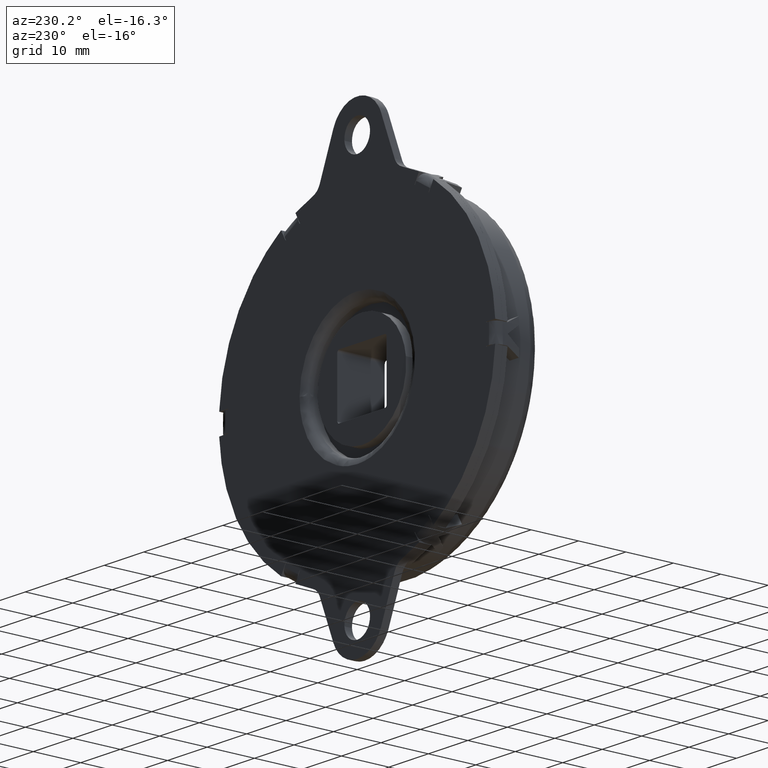
[diagram: clean part render]
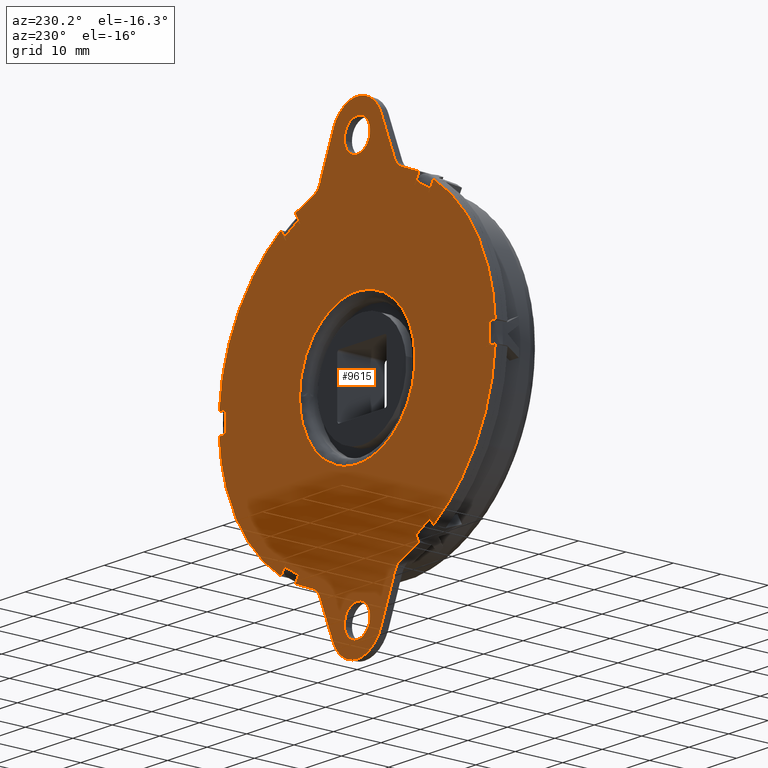
[diagram: same view with one face highlighted and labeled with its STEP entity id]
A machine part, auxiliary view. The second image highlights one B-rep face of the part: STEP entity #9615.
In plain terms, the highlighted face is a freeform B-spline surface patch.
Its self-contained STEP definition (entity closure, byte-faithful):
#2194=CARTESIAN_POINT('',(-3.239981334623022,-3.469447E-018,41.254992061238028));
#2195=VERTEX_POINT('',#2194);
#2201=CARTESIAN_POINT('',(0.0,0.0,44.250000000000007));
#2202=VERTEX_POINT('',#2201);
#2203=CARTESIAN_POINT('',(0.0,0.0,44.250000000000007));
#2204=CARTESIAN_POINT('',(-3.004269097661231,0.0,44.250000000000000));
#2205=CARTESIAN_POINT('',(-3.239981334623022,-3.469447E-018,41.254992061238028));
#2213=(BOUNDED_CURVE()B_SPLINE_CURVE(2,(#2203,#2204,#2205),.UNSPECIFIED.,.F.,.U.)B_SPLINE_CURVE_WITH_KNOTS((3,3),(0.0,0.236331300619801),.UNSPECIFIED.)CURVE()GEOMETRIC_REPRESENTATION_ITEM()RATIONAL_B_SPLINE_CURVE((1.0,0.723120658620388,0.969723356144756))REPRESENTATION_ITEM(''));
#2214=EDGE_CURVE('',#2202,#2195,#2213,.T.);
#2216=CARTESIAN_POINT('',(3.239981334623022,-3.469447E-018,40.745007938761972));
#2217=VERTEX_POINT('',#2216);
#2218=CARTESIAN_POINT('',(3.239981334623022,-3.469447E-018,40.745007938761972));
#2219=CARTESIAN_POINT('',(3.250000000000000,0.0,40.872307152101968));
#2220=CARTESIAN_POINT('',(3.250000000000000,0.0,41.0));
#2221=CARTESIAN_POINT('',(3.250000000000000,0.0,44.250000000000007));
#2222=CARTESIAN_POINT('',(0.0,0.0,44.250000000000007));
#2230=(BOUNDED_CURVE()B_SPLINE_CURVE(2,(#2218,#2219,#2220,#2221,#2222),.UNSPECIFIED.,.F.,.U.)B_SPLINE_CURVE_WITH_KNOTS((3,2,3),(0.736331300619801,0.750000000000000,1.0),.UNSPECIFIED.)CURVE()GEOMETRIC_REPRESENTATION_ITEM()RATIONAL_B_SPLINE_CURVE((0.969723356144756,0.983986122566160,1.0,0.707106781186547,1.0))REPRESENTATION_ITEM(''));
#2231=EDGE_CURVE('',#2217,#2202,#2230,.T.);
#2307=CARTESIAN_POINT('',(0.0,0.0,37.750000000000000));
#2308=VERTEX_POINT('',#2307);
#2309=CARTESIAN_POINT('',(0.0,0.0,37.750000000000000));
#2310=CARTESIAN_POINT('',(3.004269097661238,0.0,37.750000000000000));
#2311=CARTESIAN_POINT('',(3.239981334623022,-3.469447E-018,40.745007938761972));
#2319=(BOUNDED_CURVE()B_SPLINE_CURVE(2,(#2309,#2310,#2311),.UNSPECIFIED.,.F.,.U.)B_SPLINE_CURVE_WITH_KNOTS((3,3),(0.500000000000000,0.736331300619801),.UNSPECIFIED.)CURVE()GEOMETRIC_REPRESENTATION_ITEM()RATIONAL_B_SPLINE_CURVE((1.0,0.723120658620387,0.969723356144756))REPRESENTATION_ITEM(''));
#2320=EDGE_CURVE('',#2308,#2217,#2319,.T.);
#2322=CARTESIAN_POINT('',(-3.239981334623022,-3.469447E-018,41.254992061238028));
#2323=CARTESIAN_POINT('',(-3.250000000000000,0.0,41.127692847898025));
#2324=CARTESIAN_POINT('',(-3.250000000000000,0.0,41.0));
#2325=CARTESIAN_POINT('',(-3.250000000000000,0.0,37.750000000000007));
#2326=CARTESIAN_POINT('',(0.0,0.0,37.750000000000000));
#2334=(BOUNDED_CURVE()B_SPLINE_CURVE(2,(#2322,#2323,#2324,#2325,#2326),.UNSPECIFIED.,.F.,.U.)B_SPLINE_CURVE_WITH_KNOTS((3,2,3),(0.236331300619801,0.250000000000000,0.500000000000000),.UNSPECIFIED.)CURVE()GEOMETRIC_REPRESENTATION_ITEM()RATIONAL_B_SPLINE_CURVE((0.969723356144756,0.983986122566160,1.0,0.707106781186547,1.0))REPRESENTATION_ITEM(''));
#2335=EDGE_CURVE('',#2195,#2308,#2334,.T.);
#2376=CARTESIAN_POINT('',(-3.239981334623022,-3.469447E-018,-40.745007938761972));
#2377=VERTEX_POINT('',#2376);
#2383=CARTESIAN_POINT('',(0.0,0.0,-37.750000000000000));
#2384=VERTEX_POINT('',#2383);
#2385=CARTESIAN_POINT('',(0.0,0.0,-37.750000000000000));
#2386=CARTESIAN_POINT('',(-3.004269097661227,0.0,-37.750000000000007));
#2387=CARTESIAN_POINT('',(-3.239981334623022,-3.469447E-018,-40.745007938761972));
#2395=(BOUNDED_CURVE()B_SPLINE_CURVE(2,(#2385,#2386,#2387),.UNSPECIFIED.,.F.,.U.)B_SPLINE_CURVE_WITH_KNOTS((3,3),(0.0,0.236331300619800),.UNSPECIFIED.)CURVE()GEOMETRIC_REPRESENTATION_ITEM()RATIONAL_B_SPLINE_CURVE((1.0,0.723120658620388,0.969723356144755))REPRESENTATION_ITEM(''));
#2396=EDGE_CURVE('',#2384,#2377,#2395,.T.);
#2398=CARTESIAN_POINT('',(3.239981334623022,-3.469447E-018,-41.254992061238028));
#2399=VERTEX_POINT('',#2398);
#2400=CARTESIAN_POINT('',(3.239981334623022,-3.469447E-018,-41.254992061238035));
#2401=CARTESIAN_POINT('',(3.250000000000000,0.0,-41.127692847898032));
#2402=CARTESIAN_POINT('',(3.250000000000000,0.0,-41.0));
#2403=CARTESIAN_POINT('',(3.250000000000000,0.0,-37.750000000000007));
#2404=CARTESIAN_POINT('',(0.0,0.0,-37.750000000000000));
#2412=(BOUNDED_CURVE()B_SPLINE_CURVE(2,(#2400,#2401,#2402,#2403,#2404),.UNSPECIFIED.,.F.,.U.)B_SPLINE_CURVE_WITH_KNOTS((3,2,3),(0.736331300619801,0.750000000000000,1.0),.UNSPECIFIED.)CURVE()GEOMETRIC_REPRESENTATION_ITEM()RATIONAL_B_SPLINE_CURVE((0.969723356144756,0.983986122566160,1.0,0.707106781186547,1.0))REPRESENTATION_ITEM(''));
#2413=EDGE_CURVE('',#2399,#2384,#2412,.T.);
#2489=CARTESIAN_POINT('',(0.0,0.0,-44.250000000000007));
#2490=VERTEX_POINT('',#2489);
#2491=CARTESIAN_POINT('',(0.0,0.0,-44.250000000000007));
#2492=CARTESIAN_POINT('',(3.004269097661238,0.0,-44.250000000000000));
#2493=CARTESIAN_POINT('',(3.239981334623022,-3.469447E-018,-41.254992061238035));
#2501=(BOUNDED_CURVE()B_SPLINE_CURVE(2,(#2491,#2492,#2493),.UNSPECIFIED.,.F.,.U.)B_SPLINE_CURVE_WITH_KNOTS((3,3),(0.500000000000000,0.736331300619801),.UNSPECIFIED.)CURVE()GEOMETRIC_REPRESENTATION_ITEM()RATIONAL_B_SPLINE_CURVE((1.0,0.723120658620387,0.969723356144756))REPRESENTATION_ITEM(''));
#2502=EDGE_CURVE('',#2490,#2399,#2501,.T.);
#2504=CARTESIAN_POINT('',(-3.239981334623022,-3.469447E-018,-40.745007938761965));
#2505=CARTESIAN_POINT('',(-3.250000000000000,0.0,-40.872307152101975));
#2506=CARTESIAN_POINT('',(-3.250000000000000,0.0,-41.0));
#2507=CARTESIAN_POINT('',(-3.250000000000000,0.0,-44.250000000000007));
#2508=CARTESIAN_POINT('',(0.0,0.0,-44.250000000000007));
#2516=(BOUNDED_CURVE()B_SPLINE_CURVE(2,(#2504,#2505,#2506,#2507,#2508),.UNSPECIFIED.,.F.,.U.)B_SPLINE_CURVE_WITH_KNOTS((3,2,3),(0.236331300619800,0.250000000000000,0.500000000000000),.UNSPECIFIED.)CURVE()GEOMETRIC_REPRESENTATION_ITEM()RATIONAL_B_SPLINE_CURVE((0.969723356144755,0.983986122566159,1.0,0.707106781186547,1.0))REPRESENTATION_ITEM(''));
#2517=EDGE_CURVE('',#2377,#2490,#2516,.T.);
#2626=CARTESIAN_POINT('',(-14.497596722151600,0.0,29.310574110410400));
#2627=VERTEX_POINT('',#2626);
#2633=CARTESIAN_POINT('',(-14.587340000607860,0.0,29.266014028334400));
#2634=VERTEX_POINT('',#2633);
#2635=CARTESIAN_POINT('',(-14.497596722151609,0.0,29.310574110410389));
#2636=CARTESIAN_POINT('',(-14.542502495903378,0.0,29.288362815745987));
#2637=CARTESIAN_POINT('',(-14.587340000607870,0.0,29.266014028334411));
#2645=(BOUNDED_CURVE()B_SPLINE_CURVE(2,(#2635,#2636,#2637),.UNSPECIFIED.,.F.,.U.)CURVE()GEOMETRIC_REPRESENTATION_ITEM()QUASI_UNIFORM_CURVE()RATIONAL_B_SPLINE_CURVE((1.0,0.999998826386876,1.0))REPRESENTATION_ITEM(''));
#2646=EDGE_CURVE('',#2627,#2634,#2645,.T.);
#2790=CARTESIAN_POINT('',(-18.051441615745450,0.0,27.266014028334499));
#2791=VERTEX_POINT('',#2790);
#2797=CARTESIAN_POINT('',(-18.134903418046100,0.0,27.210574110410501));
#2798=VERTEX_POINT('',#2797);
#2799=CARTESIAN_POINT('',(-18.051441615745460,0.0,27.266014028334499));
#2800=CARTESIAN_POINT('',(-18.093214985740161,0.0,27.238358003923729));
#2801=CARTESIAN_POINT('',(-18.134903418046079,0.0,27.210574110410491));
#2809=(BOUNDED_CURVE()B_SPLINE_CURVE(2,(#2799,#2800,#2801),.UNSPECIFIED.,.F.,.U.)CURVE()GEOMETRIC_REPRESENTATION_ITEM()QUASI_UNIFORM_CURVE()RATIONAL_B_SPLINE_CURVE((1.0,0.999998826386876,1.0))REPRESENTATION_ITEM(''));
#2810=EDGE_CURVE('',#2791,#2798,#2809,.T.);
#2834=CARTESIAN_POINT('',(-32.632500140197699,0.0,2.099999999999910));
#2835=VERTEX_POINT('',#2834);
#2841=CARTESIAN_POINT('',(-32.638781616353299,0.0,1.999999999999905));
#2842=VERTEX_POINT('',#2841);
#2843=CARTESIAN_POINT('',(-32.632500140197678,0.0,2.099999999999905));
#2844=CARTESIAN_POINT('',(-32.635717481643226,0.0,2.050004811822229));
#2845=CARTESIAN_POINT('',(-32.638781616353292,0.0,1.999999999999899));
#2853=(BOUNDED_CURVE()B_SPLINE_CURVE(2,(#2843,#2844,#2845),.UNSPECIFIED.,.F.,.U.)CURVE()GEOMETRIC_REPRESENTATION_ITEM()QUASI_UNIFORM_CURVE()RATIONAL_B_SPLINE_CURVE((1.0,0.999998826386876,1.0))REPRESENTATION_ITEM(''));
#2854=EDGE_CURVE('',#2835,#2842,#2853,.T.);
#2998=CARTESIAN_POINT('',(-32.638781616353299,0.0,-1.999999999999885));
#2999=VERTEX_POINT('',#2998);
#3005=CARTESIAN_POINT('',(-32.632500140197699,0.0,-2.099999999999885));
#3006=VERTEX_POINT('',#3005);
#3007=CARTESIAN_POINT('',(-32.638781616353292,0.0,-1.999999999999894));
#3008=CARTESIAN_POINT('',(-32.635717481643226,0.0,-2.050004811822230));
#3009=CARTESIAN_POINT('',(-32.632500140197678,0.0,-2.099999999999901));
#3017=(BOUNDED_CURVE()B_SPLINE_CURVE(2,(#3007,#3008,#3009),.UNSPECIFIED.,.F.,.U.)CURVE()GEOMETRIC_REPRESENTATION_ITEM()QUASI_UNIFORM_CURVE()RATIONAL_B_SPLINE_CURVE((1.0,0.999998826386876,1.0))REPRESENTATION_ITEM(''));
#3018=EDGE_CURVE('',#2999,#3006,#3017,.T.);
#3287=CARTESIAN_POINT('',(-18.134903418046100,0.0,-27.210574110410501));
#3288=VERTEX_POINT('',#3287);
#3294=CARTESIAN_POINT('',(-18.051441615745450,0.0,-27.266014028334549));
#3295=VERTEX_POINT('',#3294);
#3296=CARTESIAN_POINT('',(-18.134903418046090,0.0,-27.210574110410491));
#3297=CARTESIAN_POINT('',(-18.093214985740364,0.0,-27.238358003923590));
#3298=CARTESIAN_POINT('',(-18.051441615745428,0.0,-27.266014028334521));
#3306=(BOUNDED_CURVE()B_SPLINE_CURVE(2,(#3296,#3297,#3298),.UNSPECIFIED.,.F.,.U.)CURVE()GEOMETRIC_REPRESENTATION_ITEM()QUASI_UNIFORM_CURVE()RATIONAL_B_SPLINE_CURVE((1.0,0.999998826386876,1.0))REPRESENTATION_ITEM(''));
#3307=EDGE_CURVE('',#3288,#3295,#3306,.T.);
#3451=CARTESIAN_POINT('',(-14.587340000607860,0.0,-29.266014028334400));
#3452=VERTEX_POINT('',#3451);
#3458=CARTESIAN_POINT('',(-14.497596722151600,0.0,-29.310574110410400));
#3459=VERTEX_POINT('',#3458);
#3460=CARTESIAN_POINT('',(-14.587340000607870,0.0,-29.266014028334411));
#3461=CARTESIAN_POINT('',(-14.542502495903136,0.0,-29.288362815746105));
#3462=CARTESIAN_POINT('',(-14.497596722151600,0.0,-29.310574110410400));
#3470=(BOUNDED_CURVE()B_SPLINE_CURVE(2,(#3460,#3461,#3462),.UNSPECIFIED.,.F.,.U.)CURVE()GEOMETRIC_REPRESENTATION_ITEM()QUASI_UNIFORM_CURVE()RATIONAL_B_SPLINE_CURVE((1.0,0.999998826386876,1.0))REPRESENTATION_ITEM(''));
#3471=EDGE_CURVE('',#3452,#3459,#3470,.T.);
#3495=CARTESIAN_POINT('',(14.497596722151600,0.0,-29.310574110410400));
#3496=VERTEX_POINT('',#3495);
#3502=CARTESIAN_POINT('',(14.587340000607860,0.0,-29.266014028334450));
#3503=VERTEX_POINT('',#3502);
#3504=CARTESIAN_POINT('',(14.497596722151590,0.0,-29.310574110410400));
#3505=CARTESIAN_POINT('',(14.542502495903577,0.0,-29.288362815745884));
#3506=CARTESIAN_POINT('',(14.587340000607840,0.0,-29.266014028334428));
#3514=(BOUNDED_CURVE()B_SPLINE_CURVE(2,(#3504,#3505,#3506),.UNSPECIFIED.,.F.,.U.)CURVE()GEOMETRIC_REPRESENTATION_ITEM()QUASI_UNIFORM_CURVE()RATIONAL_B_SPLINE_CURVE((1.0,0.999998826386876,1.0))REPRESENTATION_ITEM(''));
#3515=EDGE_CURVE('',#3496,#3503,#3514,.T.);
#3659=CARTESIAN_POINT('',(18.051441615745450,0.0,-27.266014028334549));
#3660=VERTEX_POINT('',#3659);
#3666=CARTESIAN_POINT('',(18.134903418046051,0.0,-27.210574110410501));
#3667=VERTEX_POINT('',#3666);
#3668=CARTESIAN_POINT('',(18.051441615745421,0.0,-27.266014028334531));
#3669=CARTESIAN_POINT('',(18.093214985739287,0.0,-27.238358003924304));
#3670=CARTESIAN_POINT('',(18.134903418046040,0.0,-27.210574110410509));
#3678=(BOUNDED_CURVE()B_SPLINE_CURVE(2,(#3668,#3669,#3670),.UNSPECIFIED.,.F.,.U.)CURVE()GEOMETRIC_REPRESENTATION_ITEM()QUASI_UNIFORM_CURVE()RATIONAL_B_SPLINE_CURVE((1.0,0.999998826386876,1.0))REPRESENTATION_ITEM(''));
#3679=EDGE_CURVE('',#3660,#3667,#3678,.T.);
#3703=CARTESIAN_POINT('',(32.632500140197699,0.0,-2.099999999999910));
#3704=VERTEX_POINT('',#3703);
#3710=CARTESIAN_POINT('',(32.638781616353299,0.0,-1.999999999999905));
#3711=VERTEX_POINT('',#3710);
#3712=CARTESIAN_POINT('',(32.632500140197678,0.0,-2.099999999999909));
#3713=CARTESIAN_POINT('',(32.635717481643226,0.0,-2.050004811822254));
#3714=CARTESIAN_POINT('',(32.638781616353292,0.0,-1.999999999999902));
#3722=(BOUNDED_CURVE()B_SPLINE_CURVE(2,(#3712,#3713,#3714),.UNSPECIFIED.,.F.,.U.)CURVE()GEOMETRIC_REPRESENTATION_ITEM()QUASI_UNIFORM_CURVE()RATIONAL_B_SPLINE_CURVE((1.0,0.999998826386876,1.0))REPRESENTATION_ITEM(''));
#3723=EDGE_CURVE('',#3704,#3711,#3722,.T.);
#3867=CARTESIAN_POINT('',(32.638781616353299,0.0,1.999999999999885));
#3868=VERTEX_POINT('',#3867);
#3874=CARTESIAN_POINT('',(32.632500140197699,0.0,2.099999999999885));
#3875=VERTEX_POINT('',#3874);
#3876=CARTESIAN_POINT('',(32.638781616353292,0.0,1.999999999999890));
#3877=CARTESIAN_POINT('',(32.635717481643276,0.0,2.050004811821609));
#3878=CARTESIAN_POINT('',(32.632500140197692,0.0,2.099999999999868));
#3886=(BOUNDED_CURVE()B_SPLINE_CURVE(2,(#3876,#3877,#3878),.UNSPECIFIED.,.F.,.U.)CURVE()GEOMETRIC_REPRESENTATION_ITEM()QUASI_UNIFORM_CURVE()RATIONAL_B_SPLINE_CURVE((1.0,0.999998826386876,1.0))REPRESENTATION_ITEM(''));
#3887=EDGE_CURVE('',#3868,#3875,#3886,.T.);
#3911=CARTESIAN_POINT('',(18.134903418046051,0.0,27.210574110410501));
#3912=VERTEX_POINT('',#3911);
#3918=CARTESIAN_POINT('',(18.051441615745400,0.0,27.266014028334549));
#3919=VERTEX_POINT('',#3918);
#3920=CARTESIAN_POINT('',(18.134903418046068,0.0,27.210574110410501));
#3921=CARTESIAN_POINT('',(18.093214985740044,0.0,27.238358003923800));
#3922=CARTESIAN_POINT('',(18.051441615745400,0.0,27.266014028334549));
#3930=(BOUNDED_CURVE()B_SPLINE_CURVE(2,(#3920,#3921,#3922),.UNSPECIFIED.,.F.,.U.)CURVE()GEOMETRIC_REPRESENTATION_ITEM()QUASI_UNIFORM_CURVE()RATIONAL_B_SPLINE_CURVE((1.0,0.999998826386876,1.0))REPRESENTATION_ITEM(''));
#3931=EDGE_CURVE('',#3912,#3919,#3930,.T.);
#4075=CARTESIAN_POINT('',(14.587340000607840,0.0,29.266014028334450));
#4076=VERTEX_POINT('',#4075);
#4082=CARTESIAN_POINT('',(14.497596722151600,0.0,29.310574110410400));
#4083=VERTEX_POINT('',#4082);
#4084=CARTESIAN_POINT('',(14.587340000607851,0.0,29.266014028334421));
#4085=CARTESIAN_POINT('',(14.542502495902706,0.0,29.288362815746318));
#4086=CARTESIAN_POINT('',(14.497596722151620,0.0,29.310574110410389));
#4094=(BOUNDED_CURVE()B_SPLINE_CURVE(2,(#4084,#4085,#4086),.UNSPECIFIED.,.F.,.U.)CURVE()GEOMETRIC_REPRESENTATION_ITEM()QUASI_UNIFORM_CURVE()RATIONAL_B_SPLINE_CURVE((1.0,0.999998826386876,1.0))REPRESENTATION_ITEM(''));
#4095=EDGE_CURVE('',#4076,#4083,#4094,.T.);
#4699=CARTESIAN_POINT('',(5.158208712719345,-3.168183E-016,-13.658436324283031));
#4700=VERTEX_POINT('',#4699);
#4714=CARTESIAN_POINT('',(0.0,0.0,-14.600000000000000));
#4715=VERTEX_POINT('',#4714);
#4716=CARTESIAN_POINT('',(0.0,0.0,-14.600000000000000));
#4717=CARTESIAN_POINT('',(2.665039436288066,0.0,-14.600000000000003));
#4718=CARTESIAN_POINT('',(5.158208712719346,-3.168183E-016,-13.658436324283024));
#4726=(BOUNDED_CURVE()B_SPLINE_CURVE(2,(#4716,#4717,#4718),.UNSPECIFIED.,.F.,.U.)B_SPLINE_CURVE_WITH_KNOTS((3,3),(0.500000000000000,0.560000000002436),.UNSPECIFIED.)CURVE()GEOMETRIC_REPRESENTATION_ITEM()RATIONAL_B_SPLINE_CURVE((1.0,0.929705627481918,0.893152553773884))REPRESENTATION_ITEM(''));
#4727=EDGE_CURVE('',#4715,#4700,#4726,.T.);
#4729=CARTESIAN_POINT('',(0.0,0.0,14.600000000000000));
#4730=VERTEX_POINT('',#4729);
#4731=CARTESIAN_POINT('',(0.0,0.0,14.600000000000000));
#4732=CARTESIAN_POINT('',(-14.599999999999994,0.0,14.599999999999994));
#4733=CARTESIAN_POINT('',(-14.600000000000000,0.0,-9.985231E-016));
#4734=CARTESIAN_POINT('',(-14.599999999999994,0.0,-14.599999999999994));
#4735=CARTESIAN_POINT('',(0.0,0.0,-14.600000000000000));
#4743=(BOUNDED_CURVE()B_SPLINE_CURVE(2,(#4731,#4732,#4733,#4734,#4735),.UNSPECIFIED.,.F.,.U.)B_SPLINE_CURVE_WITH_KNOTS((3,2,3),(0.0,0.250000000000000,0.500000000000000),.UNSPECIFIED.)CURVE()GEOMETRIC_REPRESENTATION_ITEM()RATIONAL_B_SPLINE_CURVE((1.0,0.707106781186547,1.0,0.707106781186547,1.0))REPRESENTATION_ITEM(''));
#4744=EDGE_CURVE('',#4730,#4715,#4743,.T.);
#4746=CARTESIAN_POINT('',(14.599999999491461,-2.829671E-016,-8.881784E-016));
#4747=VERTEX_POINT('',#4746);
#4748=CARTESIAN_POINT('',(14.599999999491461,-2.829671E-016,-8.881784E-016));
#4749=CARTESIAN_POINT('',(14.599999999999994,0.0,14.599999999999994));
#4750=CARTESIAN_POINT('',(0.0,0.0,14.600000000000000));
#4758=(BOUNDED_CURVE()B_SPLINE_CURVE(2,(#4748,#4749,#4750),.UNSPECIFIED.,.F.,.U.)B_SPLINE_CURVE_WITH_KNOTS((3,3),(0.750000000000000,1.0),.UNSPECIFIED.)CURVE()GEOMETRIC_REPRESENTATION_ITEM()RATIONAL_B_SPLINE_CURVE((1.0,0.707106781186547,1.0))REPRESENTATION_ITEM(''));
#4759=EDGE_CURVE('',#4747,#4730,#4758,.T.);
#4800=CARTESIAN_POINT('',(5.158208712719345,-3.168183E-016,-13.658436324283025));
#4801=CARTESIAN_POINT('',(14.599999999999987,0.0,-10.092674556187211));
#4802=CARTESIAN_POINT('',(14.599999999491464,-2.829671E-016,-8.881784E-016));
#4810=(BOUNDED_CURVE()B_SPLINE_CURVE(2,(#4800,#4801,#4802),.UNSPECIFIED.,.F.,.U.)B_SPLINE_CURVE_WITH_KNOTS((3,3),(0.560000000002437,0.750000000000000),.UNSPECIFIED.)CURVE()GEOMETRIC_REPRESENTATION_ITEM()RATIONAL_B_SPLINE_CURVE((0.893152553773884,0.777401153704631,1.000000000000000))REPRESENTATION_ITEM(''));
#4811=EDGE_CURVE('',#4700,#4747,#4810,.T.);
#4834=CARTESIAN_POINT('',(-14.937982185799560,0.0,29.873344108364201));
#4835=VERTEX_POINT('',#4834);
#4866=CARTESIAN_POINT('',(-18.402083800937351,-5.798029E-012,27.873344108364201));
#4867=VERTEX_POINT('',#4866);
#4868=CARTESIAN_POINT('',(-18.402083800937351,-5.798029E-012,27.873344108364201));
#4869=CARTESIAN_POINT('',(-16.730020877039561,0.0,28.977246170721088));
#4870=CARTESIAN_POINT('',(-14.937982185799560,0.0,29.873344108364151));
#4878=(BOUNDED_CURVE()B_SPLINE_CURVE(2,(#4868,#4869,#4870),.UNSPECIFIED.,.F.,.U.)CURVE()GEOMETRIC_REPRESENTATION_ITEM()QUASI_UNIFORM_CURVE()RATIONAL_B_SPLINE_CURVE((1.0,0.998205568465190,1.0))REPRESENTATION_ITEM(''));
#4879=EDGE_CURVE('',#4867,#4835,#4878,.T.);
#4944=CARTESIAN_POINT('',(-33.340065986737351,0.0,2.000000000000315));
#4945=VERTEX_POINT('',#4944);
#4976=CARTESIAN_POINT('',(-33.340065986737351,-5.798029E-012,-1.999999999999685));
#4977=VERTEX_POINT('',#4976);
#4978=CARTESIAN_POINT('',(-33.340065986737351,-5.798029E-012,-1.999999999999685));
#4979=CARTESIAN_POINT('',(-33.460041754079583,0.0,2.641116E-013));
#4980=CARTESIAN_POINT('',(-33.340065986737322,0.0,2.000000000000303));
#4988=(BOUNDED_CURVE()B_SPLINE_CURVE(2,(#4978,#4979,#4980),.UNSPECIFIED.,.F.,.U.)CURVE()GEOMETRIC_REPRESENTATION_ITEM()QUASI_UNIFORM_CURVE()RATIONAL_B_SPLINE_CURVE((1.0,0.998205568465190,1.0))REPRESENTATION_ITEM(''));
#4989=EDGE_CURVE('',#4977,#4945,#4988,.T.);
#5054=CARTESIAN_POINT('',(-18.402083800937799,0.0,-27.873344108363849));
#5055=VERTEX_POINT('',#5054);
#5086=CARTESIAN_POINT('',(-14.937982185800060,-5.798029E-012,-29.873344108363948));
#5087=VERTEX_POINT('',#5086);
#5088=CARTESIAN_POINT('',(-14.937982185800060,-5.798029E-012,-29.873344108363948));
#5089=CARTESIAN_POINT('',(-16.730020877040044,0.0,-28.977246170720811));
#5090=CARTESIAN_POINT('',(-18.402083800937799,0.0,-27.873344108363870));
#5098=(BOUNDED_CURVE()B_SPLINE_CURVE(2,(#5088,#5089,#5090),.UNSPECIFIED.,.F.,.U.)CURVE()GEOMETRIC_REPRESENTATION_ITEM()QUASI_UNIFORM_CURVE()RATIONAL_B_SPLINE_CURVE((1.0,0.998205568465190,1.0))REPRESENTATION_ITEM(''));
#5099=EDGE_CURVE('',#5087,#5055,#5098,.T.);
#5164=CARTESIAN_POINT('',(14.937982185799560,0.0,-29.873344108364201));
#5165=VERTEX_POINT('',#5164);
#5196=CARTESIAN_POINT('',(18.402083800937351,-5.798029E-012,-27.873344108364201));
#5197=VERTEX_POINT('',#5196);
#5198=CARTESIAN_POINT('',(18.402083800937351,-5.798029E-012,-27.873344108364201));
#5199=CARTESIAN_POINT('',(16.730020877039571,0.0,-28.977246170721084));
#5200=CARTESIAN_POINT('',(14.937982185799539,0.0,-29.873344108364162));
#5208=(BOUNDED_CURVE()B_SPLINE_CURVE(2,(#5198,#5199,#5200),.UNSPECIFIED.,.F.,.U.)CURVE()GEOMETRIC_REPRESENTATION_ITEM()QUASI_UNIFORM_CURVE()RATIONAL_B_SPLINE_CURVE((1.0,0.998205568465190,1.0))REPRESENTATION_ITEM(''));
#5209=EDGE_CURVE('',#5197,#5165,#5208,.T.);
#5274=CARTESIAN_POINT('',(33.340065986737351,0.0,-2.000000000000315));
#5275=VERTEX_POINT('',#5274);
#5306=CARTESIAN_POINT('',(33.340065986737351,-5.798029E-012,1.999999999999685));
#5307=VERTEX_POINT('',#5306);
#5308=CARTESIAN_POINT('',(33.340065986737351,-5.798029E-012,1.999999999999685));
#5309=CARTESIAN_POINT('',(33.460041754079583,0.0,-2.788568E-013));
#5310=CARTESIAN_POINT('',(33.340065986737322,0.0,-2.000000000000314));
#5318=(BOUNDED_CURVE()B_SPLINE_CURVE(2,(#5308,#5309,#5310),.UNSPECIFIED.,.F.,.U.)CURVE()GEOMETRIC_REPRESENTATION_ITEM()QUASI_UNIFORM_CURVE()RATIONAL_B_SPLINE_CURVE((1.0,0.998205568465190,1.0))REPRESENTATION_ITEM(''));
#5319=EDGE_CURVE('',#5307,#5275,#5318,.T.);
#5384=CARTESIAN_POINT('',(18.402083800937849,0.0,27.873344108363948));
#5385=VERTEX_POINT('',#5384);
#5416=CARTESIAN_POINT('',(14.937982185800060,-5.798029E-012,29.873344108363948));
#5417=VERTEX_POINT('',#5416);
#5418=CARTESIAN_POINT('',(14.937982185800060,-5.798029E-012,29.873344108363948));
#5419=CARTESIAN_POINT('',(16.730020877040040,0.0,28.977246170720811));
#5420=CARTESIAN_POINT('',(18.402083800937849,0.0,27.873344108363948));
#5428=(BOUNDED_CURVE()B_SPLINE_CURVE(2,(#5418,#5419,#5420),.UNSPECIFIED.,.F.,.U.)CURVE()GEOMETRIC_REPRESENTATION_ITEM()QUASI_UNIFORM_CURVE()RATIONAL_B_SPLINE_CURVE((1.0,0.998205568465189,1.0))REPRESENTATION_ITEM(''));
#5429=EDGE_CURVE('',#5417,#5385,#5428,.T.);
#6662=CARTESIAN_POINT('',(18.051441615745400,0.0,27.266014028334549));
#6663=CARTESIAN_POINT('',(18.402083800937849,0.0,27.873344108363948));
#6664=QUASI_UNIFORM_CURVE('',1,(#6662,#6663),.UNSPECIFIED.,.F.,.U.);
#6665=EDGE_CURVE('',#3919,#5385,#6664,.T.);
#6689=CARTESIAN_POINT('',(14.587340000607840,0.0,29.266014028334450));
#6690=CARTESIAN_POINT('',(14.937982185800060,-5.798029E-012,29.873344108363948));
#6691=QUASI_UNIFORM_CURVE('',1,(#6689,#6690),.UNSPECIFIED.,.F.,.U.);
#6692=EDGE_CURVE('',#4076,#5417,#6691,.T.);
#6884=CARTESIAN_POINT('',(-14.587340000607860,0.0,29.266014028334400));
#6885=CARTESIAN_POINT('',(-14.937982185799560,0.0,29.873344108364201));
#6886=QUASI_UNIFORM_CURVE('',1,(#6884,#6885),.UNSPECIFIED.,.F.,.U.);
#6887=EDGE_CURVE('',#2634,#4835,#6886,.T.);
#6911=CARTESIAN_POINT('',(-18.051441615745450,0.0,27.266014028334499));
#6912=CARTESIAN_POINT('',(-18.402083800937351,-5.798029E-012,27.873344108364201));
#6913=QUASI_UNIFORM_CURVE('',1,(#6911,#6912),.UNSPECIFIED.,.F.,.U.);
#6914=EDGE_CURVE('',#2791,#4867,#6913,.T.);
#7106=CARTESIAN_POINT('',(-32.638781616353299,0.0,1.999999999999905));
#7107=CARTESIAN_POINT('',(-33.340065986737351,0.0,2.000000000000315));
#7108=QUASI_UNIFORM_CURVE('',1,(#7106,#7107),.UNSPECIFIED.,.F.,.U.);
#7109=EDGE_CURVE('',#2842,#4945,#7108,.T.);
#7133=CARTESIAN_POINT('',(-32.638781616353299,0.0,-1.999999999999885));
#7134=CARTESIAN_POINT('',(-33.340065986737351,-5.798029E-012,-1.999999999999685));
#7135=QUASI_UNIFORM_CURVE('',1,(#7133,#7134),.UNSPECIFIED.,.F.,.U.);
#7136=EDGE_CURVE('',#2999,#4977,#7135,.T.);
#7328=CARTESIAN_POINT('',(-18.051441615745450,0.0,-27.266014028334549));
#7329=CARTESIAN_POINT('',(-18.402083800937799,0.0,-27.873344108363849));
#7330=QUASI_UNIFORM_CURVE('',1,(#7328,#7329),.UNSPECIFIED.,.F.,.U.);
#7331=EDGE_CURVE('',#3295,#5055,#7330,.T.);
#7355=CARTESIAN_POINT('',(-14.587340000607860,0.0,-29.266014028334400));
#7356=CARTESIAN_POINT('',(-14.937982185800060,-5.798029E-012,-29.873344108363948));
#7357=QUASI_UNIFORM_CURVE('',1,(#7355,#7356),.UNSPECIFIED.,.F.,.U.);
#7358=EDGE_CURVE('',#3452,#5087,#7357,.T.);
#7730=CARTESIAN_POINT('',(14.587340000607860,0.0,-29.266014028334450));
#7731=CARTESIAN_POINT('',(14.937982185799560,0.0,-29.873344108364201));
#7732=QUASI_UNIFORM_CURVE('',1,(#7730,#7731),.UNSPECIFIED.,.F.,.U.);
#7733=EDGE_CURVE('',#3503,#5165,#7732,.T.);
#7757=CARTESIAN_POINT('',(18.051441615745450,0.0,-27.266014028334549));
#7758=CARTESIAN_POINT('',(18.402083800937351,-5.798029E-012,-27.873344108364201));
#7759=QUASI_UNIFORM_CURVE('',1,(#7757,#7758),.UNSPECIFIED.,.F.,.U.);
#7760=EDGE_CURVE('',#3660,#5197,#7759,.T.);
#8068=CARTESIAN_POINT('',(32.638781616353299,0.0,-1.999999999999905));
#8069=CARTESIAN_POINT('',(33.340065986737351,0.0,-2.000000000000315));
#8070=QUASI_UNIFORM_CURVE('',1,(#8068,#8069),.UNSPECIFIED.,.F.,.U.);
#8071=EDGE_CURVE('',#3711,#5275,#8070,.T.);
#8095=CARTESIAN_POINT('',(32.638781616353299,0.0,1.999999999999885));
#8096=CARTESIAN_POINT('',(33.340065986737351,-5.798029E-012,1.999999999999685));
#8097=QUASI_UNIFORM_CURVE('',1,(#8095,#8096),.UNSPECIFIED.,.F.,.U.);
#8098=EDGE_CURVE('',#3868,#5307,#8097,.T.);
#8322=CARTESIAN_POINT('',(11.290251355783001,0.0,-33.128993711298243));
#8323=VERTEX_POINT('',#8322);
#8324=CARTESIAN_POINT('',(9.472363982807911,0.0,-34.854947957250602));
#8325=VERTEX_POINT('',#8324);
#8326=CARTESIAN_POINT('',(11.290251355783001,0.0,-33.128993711298243));
#8327=CARTESIAN_POINT('',(9.984478149512315,0.0,-33.574001503755248));
#8328=CARTESIAN_POINT('',(9.472363982807911,0.0,-34.854947957250602));
#8336=(BOUNDED_CURVE()B_SPLINE_CURVE(2,(#8326,#8327,#8328),.UNSPECIFIED.,.F.,.U.)CURVE()GEOMETRIC_REPRESENTATION_ITEM()QUASI_UNIFORM_CURVE()RATIONAL_B_SPLINE_CURVE((1.0,0.908545628248372,1.0))REPRESENTATION_ITEM(''));
#8337=EDGE_CURVE('',#8323,#8325,#8336,.T.);
#8384=CARTESIAN_POINT('',(11.290254169504321,0.0,33.129001967603003));
#8385=VERTEX_POINT('',#8384);
#8391=CARTESIAN_POINT('',(9.472363982797681,0.0,34.854947957276202));
#8392=VERTEX_POINT('',#8391);
#8393=CARTESIAN_POINT('',(9.472363982797667,0.0,34.854947957276202));
#8394=CARTESIAN_POINT('',(9.984479556357163,0.0,33.574005631913032));
#8395=CARTESIAN_POINT('',(11.290254169504321,0.0,33.129001967603003));
#8403=(BOUNDED_CURVE()B_SPLINE_CURVE(2,(#8393,#8394,#8395),.UNSPECIFIED.,.F.,.U.)CURVE()GEOMETRIC_REPRESENTATION_ITEM()QUASI_UNIFORM_CURVE()RATIONAL_B_SPLINE_CURVE((1.0,0.908545628246452,1.0))REPRESENTATION_ITEM(''));
#8404=EDGE_CURVE('',#8392,#8385,#8403,.T.);
#8419=CARTESIAN_POINT('',(6.031800044424820,0.0,43.422299889377697));
#8420=VERTEX_POINT('',#8419);
#8421=CARTESIAN_POINT('',(6.031800044424820,0.0,43.422299889377697));
#8422=CARTESIAN_POINT('',(9.472363982797681,0.0,34.854947957276202));
#8423=QUASI_UNIFORM_CURVE('',1,(#8421,#8422),.UNSPECIFIED.,.F.,.U.);
#8424=EDGE_CURVE('',#8420,#8392,#8423,.T.);
#8460=CARTESIAN_POINT('',(-6.031800177699279,0.0,43.422299557510847));
#8461=VERTEX_POINT('',#8460);
#8462=CARTESIAN_POINT('',(6.031800044424830,0.0,43.422299889377697));
#8463=CARTESIAN_POINT('',(4.394234192149004,0.0,47.500004364497521));
#8464=CARTESIAN_POINT('',(-0.000000178813932,0.0,47.500004243613148));
#8465=CARTESIAN_POINT('',(-4.394234549776870,0.0,47.500004122728768));
#8466=CARTESIAN_POINT('',(-6.031800177699280,0.0,43.422299557510847));
#8474=(BOUNDED_CURVE()B_SPLINE_CURVE(2,(#8462,#8463,#8464,#8465,#8466),.UNSPECIFIED.,.F.,.U.)B_SPLINE_CURVE_WITH_KNOTS((3,2,3),(0.0,0.500000000000000,1.0),.UNSPECIFIED.)CURVE()GEOMETRIC_REPRESENTATION_ITEM()RATIONAL_B_SPLINE_CURVE((1.0,0.828451072032001,1.0,0.828451072032001,1.0))REPRESENTATION_ITEM(''));
#8475=EDGE_CURVE('',#8420,#8461,#8474,.T.);
#8508=CARTESIAN_POINT('',(-9.472363982797670,0.0,34.854947957276202));
#8509=VERTEX_POINT('',#8508);
#8510=CARTESIAN_POINT('',(-9.472363982797670,0.0,34.854947957276202));
#8511=CARTESIAN_POINT('',(-6.031800177699279,0.0,43.422299557510847));
#8512=QUASI_UNIFORM_CURVE('',1,(#8510,#8511),.UNSPECIFIED.,.F.,.U.);
#8513=EDGE_CURVE('',#8509,#8461,#8512,.T.);
#8546=CARTESIAN_POINT('',(-11.290251355783001,0.0,33.128993711298300));
#8547=VERTEX_POINT('',#8546);
#8548=CARTESIAN_POINT('',(-11.290251355783001,0.0,33.128993711298300));
#8549=CARTESIAN_POINT('',(-9.984478149496507,0.0,33.574001503760691));
#8550=CARTESIAN_POINT('',(-9.472363982797670,0.0,34.854947957276202));
#8558=(BOUNDED_CURVE()B_SPLINE_CURVE(2,(#8548,#8549,#8550),.UNSPECIFIED.,.F.,.U.)CURVE()GEOMETRIC_REPRESENTATION_ITEM()QUASI_UNIFORM_CURVE()RATIONAL_B_SPLINE_CURVE((1.0,0.908545628246453,1.0))REPRESENTATION_ITEM(''));
#8559=EDGE_CURVE('',#8547,#8509,#8558,.T.);
#8598=CARTESIAN_POINT('',(-9.474059972795500,0.0,-34.850640067741999));
#8599=VERTEX_POINT('',#8598);
#8600=CARTESIAN_POINT('',(-11.290250197106420,0.0,-33.128994282436452));
#8601=VERTEX_POINT('',#8600);
#8602=CARTESIAN_POINT('',(-9.474059972795500,0.0,-34.850640067741999));
#8603=CARTESIAN_POINT('',(-9.987113592334321,0.0,-33.573081281190419));
#8604=CARTESIAN_POINT('',(-11.290250197106420,0.0,-33.128994282436452));
#8612=(BOUNDED_CURVE()B_SPLINE_CURVE(2,(#8602,#8603,#8604),.UNSPECIFIED.,.F.,.U.)CURVE()GEOMETRIC_REPRESENTATION_ITEM()QUASI_UNIFORM_CURVE()RATIONAL_B_SPLINE_CURVE((1.0,0.908865516714194,1.0))REPRESENTATION_ITEM(''));
#8613=EDGE_CURVE('',#8599,#8601,#8612,.T.);
#8636=CARTESIAN_POINT('',(-6.037214864569360,0.0,-43.408741721111362));
#8637=VERTEX_POINT('',#8636);
#8638=CARTESIAN_POINT('',(-6.037214864569360,0.0,-43.408741721111362));
#8639=CARTESIAN_POINT('',(-9.474059972795500,0.0,-34.850640067741999));
#8640=QUASI_UNIFORM_CURVE('',1,(#8638,#8639),.UNSPECIFIED.,.F.,.U.);
#8641=EDGE_CURVE('',#8637,#8599,#8640,.T.);
#8667=CARTESIAN_POINT('',(-3.164118E-015,0.0,-47.500000000000000));
#8668=VERTEX_POINT('',#8667);
#8669=CARTESIAN_POINT('',(-6.037214864569380,0.0,-43.408741721111362));
#8670=CARTESIAN_POINT('',(-4.404875328993776,0.0,-47.500000000000000));
#8671=CARTESIAN_POINT('',(0.0,0.0,-47.500000000000000));
#8679=(BOUNDED_CURVE()B_SPLINE_CURVE(2,(#8669,#8670,#8671),.UNSPECIFIED.,.F.,.U.)CURVE()GEOMETRIC_REPRESENTATION_ITEM()QUASI_UNIFORM_CURVE()RATIONAL_B_SPLINE_CURVE((1.0,0.827821130861537,1.0))REPRESENTATION_ITEM(''));
#8680=EDGE_CURVE('',#8637,#8668,#8679,.T.);
#8706=CARTESIAN_POINT('',(6.031800000000001,0.0,-43.422300000000000));
#8707=VERTEX_POINT('',#8706);
#8708=CARTESIAN_POINT('',(-2.766128E-015,0.0,-47.499999999999922));
#8709=CARTESIAN_POINT('',(4.394234208330353,0.0,-47.500004324204085));
#8710=CARTESIAN_POINT('',(6.031799999999979,0.0,-43.422299999999993));
#8718=(BOUNDED_CURVE()B_SPLINE_CURVE(2,(#8708,#8709,#8710),.UNSPECIFIED.,.F.,.U.)CURVE()GEOMETRIC_REPRESENTATION_ITEM()QUASI_UNIFORM_CURVE()RATIONAL_B_SPLINE_CURVE((1.0,0.828450804167562,1.0))REPRESENTATION_ITEM(''));
#8719=EDGE_CURVE('',#8668,#8707,#8718,.T.);
#8736=CARTESIAN_POINT('',(9.472363982807911,0.0,-34.854947957250602));
#8737=CARTESIAN_POINT('',(6.031800000000001,0.0,-43.422300000000000));
#8738=QUASI_UNIFORM_CURVE('',1,(#8736,#8737),.UNSPECIFIED.,.F.,.U.);
#8739=EDGE_CURVE('',#8325,#8707,#8738,.T.);
#9361=CARTESIAN_POINT('',(-38.427143687731864,0.0,52.245254271453078));
#9362=CARTESIAN_POINT('',(38.427145561895543,0.0,52.245254271453078));
#9363=CARTESIAN_POINT('',(-38.427143687731864,0.0,-52.245252575938707));
#9364=CARTESIAN_POINT('',(38.427145561895543,0.0,-52.245252575938707));
#9365=B_SPLINE_SURFACE_WITH_KNOTS('',1,1,((#9361,#9363),(#9362,#9364)),.UNSPECIFIED.,.F.,.F.,.U.,(2,2),(2,2),(0.0,76.854289249627385),(0.0,104.490506847391800),.UNSPECIFIED.);
#9366=ORIENTED_EDGE('',*,*,#6692,.T.);
#9367=ORIENTED_EDGE('',*,*,#5429,.T.);
#9368=ORIENTED_EDGE('',*,*,#6665,.F.);
#9369=ORIENTED_EDGE('',*,*,#3931,.F.);
#9370=CARTESIAN_POINT('',(19.287124946802098,0.0,29.206280339790698));
#9371=VERTEX_POINT('',#9370);
#9372=CARTESIAN_POINT('',(18.134903418046051,0.0,27.210574110410501));
#9373=CARTESIAN_POINT('',(19.287124946802098,0.0,29.206280339790698));
#9374=QUASI_UNIFORM_CURVE('',1,(#9372,#9373),.UNSPECIFIED.,.F.,.U.);
#9375=EDGE_CURVE('',#3912,#9371,#9374,.T.);
#9376=ORIENTED_EDGE('',*,*,#9375,.T.);
#9377=CARTESIAN_POINT('',(34.936943197709802,0.0,2.099999999999885));
#9378=VERTEX_POINT('',#9377);
#9379=CARTESIAN_POINT('',(34.936943197709802,0.0,2.099999999999891));
#9380=CARTESIAN_POINT('',(33.887166029352528,0.0,19.564764429120228));
#9381=CARTESIAN_POINT('',(19.287124946802120,0.0,29.206280339790681));
#9389=(BOUNDED_CURVE()B_SPLINE_CURVE(2,(#9379,#9380,#9381),.UNSPECIFIED.,.F.,.U.)CURVE()GEOMETRIC_REPRESENTATION_ITEM()QUASI_UNIFORM_CURVE()RATIONAL_B_SPLINE_CURVE((1.0,0.894465152565445,1.0))REPRESENTATION_ITEM(''));
#9390=EDGE_CURVE('',#9378,#9371,#9389,.T.);
#9391=ORIENTED_EDGE('',*,*,#9390,.F.);
#9392=CARTESIAN_POINT('',(34.936943197709802,0.0,2.099999999999885));
#9393=CARTESIAN_POINT('',(32.632500140197699,0.0,2.099999999999885));
#9394=QUASI_UNIFORM_CURVE('',1,(#9392,#9393),.UNSPECIFIED.,.F.,.U.);
#9395=EDGE_CURVE('',#9378,#3875,#9394,.T.);
#9396=ORIENTED_EDGE('',*,*,#9395,.T.);
#9397=ORIENTED_EDGE('',*,*,#3887,.F.);
#9398=ORIENTED_EDGE('',*,*,#8098,.T.);
#9399=ORIENTED_EDGE('',*,*,#5319,.T.);
#9400=ORIENTED_EDGE('',*,*,#8071,.F.);
#9401=ORIENTED_EDGE('',*,*,#3723,.F.);
#9402=CARTESIAN_POINT('',(34.936943197709802,0.0,-2.099999999999885));
#9403=VERTEX_POINT('',#9402);
#9404=CARTESIAN_POINT('',(32.632500140197699,0.0,-2.099999999999910));
#9405=CARTESIAN_POINT('',(34.936943197709802,0.0,-2.099999999999885));
#9406=QUASI_UNIFORM_CURVE('',1,(#9404,#9405),.UNSPECIFIED.,.F.,.U.);
#9407=EDGE_CURVE('',#3704,#9403,#9406,.T.);
#9408=ORIENTED_EDGE('',*,*,#9407,.T.);
#9409=CARTESIAN_POINT('',(19.287124946802098,0.0,-29.206280339790649));
#9410=VERTEX_POINT('',#9409);
#9411=CARTESIAN_POINT('',(19.287124946802109,0.0,-29.206280339790691));
#9412=CARTESIAN_POINT('',(33.887166029352507,0.0,-19.564764429120242));
#9413=CARTESIAN_POINT('',(34.936943197709802,0.0,-2.099999999999904));
#9421=(BOUNDED_CURVE()B_SPLINE_CURVE(2,(#9411,#9412,#9413),.UNSPECIFIED.,.F.,.U.)CURVE()GEOMETRIC_REPRESENTATION_ITEM()QUASI_UNIFORM_CURVE()RATIONAL_B_SPLINE_CURVE((1.0,0.894465152565445,1.0))REPRESENTATION_ITEM(''));
#9422=EDGE_CURVE('',#9410,#9403,#9421,.T.);
#9423=ORIENTED_EDGE('',*,*,#9422,.F.);
#9424=CARTESIAN_POINT('',(19.287124946802098,0.0,-29.206280339790649));
#9425=CARTESIAN_POINT('',(18.134903418046051,0.0,-27.210574110410501));
#9426=QUASI_UNIFORM_CURVE('',1,(#9424,#9425),.UNSPECIFIED.,.F.,.U.);
#9427=EDGE_CURVE('',#9410,#3667,#9426,.T.);
#9428=ORIENTED_EDGE('',*,*,#9427,.T.);
#9429=ORIENTED_EDGE('',*,*,#3679,.F.);
#9430=ORIENTED_EDGE('',*,*,#7760,.T.);
#9431=ORIENTED_EDGE('',*,*,#5209,.T.);
#9432=ORIENTED_EDGE('',*,*,#7733,.F.);
#9433=ORIENTED_EDGE('',*,*,#3515,.F.);
#9434=CARTESIAN_POINT('',(15.649818250907650,0.0,-31.306280339790550));
#9435=VERTEX_POINT('',#9434);
#9436=CARTESIAN_POINT('',(14.497596722151600,0.0,-29.310574110410400));
#9437=CARTESIAN_POINT('',(15.649818250907650,0.0,-31.306280339790550));
#9438=QUASI_UNIFORM_CURVE('',1,(#9436,#9437),.UNSPECIFIED.,.F.,.U.);
#9439=EDGE_CURVE('',#3496,#9435,#9438,.T.);
#9440=ORIENTED_EDGE('',*,*,#9439,.T.);
#9441=CARTESIAN_POINT('',(11.290251355782990,0.0,-33.128993711298271));
#9442=CARTESIAN_POINT('',(13.531695446453840,0.0,-32.365116987358483));
#9443=CARTESIAN_POINT('',(15.649818250907661,0.0,-31.306280339790579));
#9451=(BOUNDED_CURVE()B_SPLINE_CURVE(2,(#9441,#9442,#9443),.UNSPECIFIED.,.F.,.U.)CURVE()GEOMETRIC_REPRESENTATION_ITEM()QUASI_UNIFORM_CURVE()RATIONAL_B_SPLINE_CURVE((1.0,0.997719020244480,1.0))REPRESENTATION_ITEM(''));
#9452=EDGE_CURVE('',#8323,#9435,#9451,.T.);
#9453=ORIENTED_EDGE('',*,*,#9452,.F.);
#9454=ORIENTED_EDGE('',*,*,#8337,.T.);
#9455=ORIENTED_EDGE('',*,*,#8739,.T.);
#9456=ORIENTED_EDGE('',*,*,#8719,.F.);
#9457=ORIENTED_EDGE('',*,*,#8680,.F.);
#9458=ORIENTED_EDGE('',*,*,#8641,.T.);
#9459=ORIENTED_EDGE('',*,*,#8613,.T.);
#9460=CARTESIAN_POINT('',(-15.649818250907650,0.0,-31.306280339790550));
#9461=VERTEX_POINT('',#9460);
#9462=CARTESIAN_POINT('',(-15.649818250907661,0.0,-31.306280339790568));
#9463=CARTESIAN_POINT('',(-13.531694870938137,0.0,-32.365117275055276));
#9464=CARTESIAN_POINT('',(-11.290250197106420,0.0,-33.128994282436452));
#9472=(BOUNDED_CURVE()B_SPLINE_CURVE(2,(#9462,#9463,#9464),.UNSPECIFIED.,.F.,.U.)CURVE()GEOMETRIC_REPRESENTATION_ITEM()QUASI_UNIFORM_CURVE()RATIONAL_B_SPLINE_CURVE((1.0,0.997719019009186,1.0))REPRESENTATION_ITEM(''));
#9473=EDGE_CURVE('',#9461,#8601,#9472,.T.);
#9474=ORIENTED_EDGE('',*,*,#9473,.F.);
#9475=CARTESIAN_POINT('',(-15.649818250907650,0.0,-31.306280339790550));
#9476=CARTESIAN_POINT('',(-14.497596722151600,0.0,-29.310574110410400));
#9477=QUASI_UNIFORM_CURVE('',1,(#9475,#9476),.UNSPECIFIED.,.F.,.U.);
#9478=EDGE_CURVE('',#9461,#3459,#9477,.T.);
#9479=ORIENTED_EDGE('',*,*,#9478,.T.);
#9480=ORIENTED_EDGE('',*,*,#3471,.F.);
#9481=ORIENTED_EDGE('',*,*,#7358,.T.);
#9482=ORIENTED_EDGE('',*,*,#5099,.T.);
#9483=ORIENTED_EDGE('',*,*,#7331,.F.);
#9484=ORIENTED_EDGE('',*,*,#3307,.F.);
#9485=CARTESIAN_POINT('',(-19.287124946802098,0.0,-29.206280339790649));
#9486=VERTEX_POINT('',#9485);
#9487=CARTESIAN_POINT('',(-18.134903418046100,0.0,-27.210574110410501));
#9488=CARTESIAN_POINT('',(-19.287124946802098,0.0,-29.206280339790649));
#9489=QUASI_UNIFORM_CURVE('',1,(#9487,#9488),.UNSPECIFIED.,.F.,.U.);
#9490=EDGE_CURVE('',#3288,#9486,#9489,.T.);
#9491=ORIENTED_EDGE('',*,*,#9490,.T.);
#9492=CARTESIAN_POINT('',(-34.936943197709802,0.0,-2.099999999999885));
#9493=VERTEX_POINT('',#9492);
#9494=CARTESIAN_POINT('',(-34.936943197709802,0.0,-2.099999999999895));
#9495=CARTESIAN_POINT('',(-33.887166029352521,0.0,-19.564764429120228));
#9496=CARTESIAN_POINT('',(-19.287124946802120,0.0,-29.206280339790681));
#9504=(BOUNDED_CURVE()B_SPLINE_CURVE(2,(#9494,#9495,#9496),.UNSPECIFIED.,.F.,.U.)CURVE()GEOMETRIC_REPRESENTATION_ITEM()QUASI_UNIFORM_CURVE()RATIONAL_B_SPLINE_CURVE((1.0,0.894465152565445,1.0))REPRESENTATION_ITEM(''));
#9505=EDGE_CURVE('',#9493,#9486,#9504,.T.);
#9506=ORIENTED_EDGE('',*,*,#9505,.F.);
#9507=CARTESIAN_POINT('',(-34.936943197709802,0.0,-2.099999999999885));
#9508=CARTESIAN_POINT('',(-32.632500140197699,0.0,-2.099999999999885));
#9509=QUASI_UNIFORM_CURVE('',1,(#9507,#9508),.UNSPECIFIED.,.F.,.U.);
#9510=EDGE_CURVE('',#9493,#3006,#9509,.T.);
#9511=ORIENTED_EDGE('',*,*,#9510,.T.);
#9512=ORIENTED_EDGE('',*,*,#3018,.F.);
#9513=ORIENTED_EDGE('',*,*,#7136,.T.);
#9514=ORIENTED_EDGE('',*,*,#4989,.T.);
#9515=ORIENTED_EDGE('',*,*,#7109,.F.);
#9516=ORIENTED_EDGE('',*,*,#2854,.F.);
#9517=CARTESIAN_POINT('',(-34.936943197709802,0.0,2.099999999999885));
#9518=VERTEX_POINT('',#9517);
#9519=CARTESIAN_POINT('',(-32.632500140197699,0.0,2.099999999999910));
#9520=CARTESIAN_POINT('',(-34.936943197709802,0.0,2.099999999999885));
#9521=QUASI_UNIFORM_CURVE('',1,(#9519,#9520),.UNSPECIFIED.,.F.,.U.);
#9522=EDGE_CURVE('',#2835,#9518,#9521,.T.);
#9523=ORIENTED_EDGE('',*,*,#9522,.T.);
#9524=CARTESIAN_POINT('',(-19.287124946802152,0.0,29.206280339790649));
#9525=VERTEX_POINT('',#9524);
#9526=CARTESIAN_POINT('',(-19.287124946802159,0.0,29.206280339790649));
#9527=CARTESIAN_POINT('',(-33.887166029352514,0.0,19.564764429120199));
#9528=CARTESIAN_POINT('',(-34.936943197709802,0.0,2.099999999999900));
#9536=(BOUNDED_CURVE()B_SPLINE_CURVE(2,(#9526,#9527,#9528),.UNSPECIFIED.,.F.,.U.)CURVE()GEOMETRIC_REPRESENTATION_ITEM()QUASI_UNIFORM_CURVE()RATIONAL_B_SPLINE_CURVE((1.0,0.894465152565445,1.0))REPRESENTATION_ITEM(''));
#9537=EDGE_CURVE('',#9525,#9518,#9536,.T.);
#9538=ORIENTED_EDGE('',*,*,#9537,.F.);
#9539=CARTESIAN_POINT('',(-19.287124946802152,0.0,29.206280339790649));
#9540=CARTESIAN_POINT('',(-18.134903418046100,0.0,27.210574110410501));
#9541=QUASI_UNIFORM_CURVE('',1,(#9539,#9540),.UNSPECIFIED.,.F.,.U.);
#9542=EDGE_CURVE('',#9525,#2798,#9541,.T.);
#9543=ORIENTED_EDGE('',*,*,#9542,.T.);
#9544=ORIENTED_EDGE('',*,*,#2810,.F.);
#9545=ORIENTED_EDGE('',*,*,#6914,.T.);
#9546=ORIENTED_EDGE('',*,*,#4879,.T.);
#9547=ORIENTED_EDGE('',*,*,#6887,.F.);
#9548=ORIENTED_EDGE('',*,*,#2646,.F.);
#9549=CARTESIAN_POINT('',(-15.649818250907700,0.0,31.306280339790550));
#9550=VERTEX_POINT('',#9549);
#9551=CARTESIAN_POINT('',(-14.497596722151600,0.0,29.310574110410400));
#9552=CARTESIAN_POINT('',(-15.649818250907700,0.0,31.306280339790550));
#9553=QUASI_UNIFORM_CURVE('',1,(#9551,#9552),.UNSPECIFIED.,.F.,.U.);
#9554=EDGE_CURVE('',#2627,#9550,#9553,.T.);
#9555=ORIENTED_EDGE('',*,*,#9554,.T.);
#9556=CARTESIAN_POINT('',(-11.290251355783001,0.0,33.128993711298271));
#9557=CARTESIAN_POINT('',(-13.531695446453840,0.0,32.365116987358483));
#9558=CARTESIAN_POINT('',(-15.649818250907700,0.0,31.306280339790550));
#9566=(BOUNDED_CURVE()B_SPLINE_CURVE(2,(#9556,#9557,#9558),.UNSPECIFIED.,.F.,.U.)CURVE()GEOMETRIC_REPRESENTATION_ITEM()QUASI_UNIFORM_CURVE()RATIONAL_B_SPLINE_CURVE((1.0,0.997719020244480,1.0))REPRESENTATION_ITEM(''));
#9567=EDGE_CURVE('',#8547,#9550,#9566,.T.);
#9568=ORIENTED_EDGE('',*,*,#9567,.F.);
#9569=ORIENTED_EDGE('',*,*,#8559,.T.);
#9570=ORIENTED_EDGE('',*,*,#8513,.T.);
#9571=ORIENTED_EDGE('',*,*,#8475,.F.);
#9572=ORIENTED_EDGE('',*,*,#8424,.T.);
#9573=ORIENTED_EDGE('',*,*,#8404,.T.);
#9574=CARTESIAN_POINT('',(15.649818250907650,0.0,31.306280339790550));
#9575=VERTEX_POINT('',#9574);
#9576=CARTESIAN_POINT('',(15.649818250907650,0.0,31.306280339790550));
#9577=CARTESIAN_POINT('',(13.531696853314513,0.0,32.365121115510838));
#9578=CARTESIAN_POINT('',(11.290254169504321,0.0,33.129001967603003));
#9586=(BOUNDED_CURVE()B_SPLINE_CURVE(2,(#9576,#9577,#9578),.UNSPECIFIED.,.F.,.U.)CURVE()GEOMETRIC_REPRESENTATION_ITEM()QUASI_UNIFORM_CURVE()RATIONAL_B_SPLINE_CURVE((1.0,0.997719020244479,1.0))REPRESENTATION_ITEM(''));
#9587=EDGE_CURVE('',#9575,#8385,#9586,.T.);
#9588=ORIENTED_EDGE('',*,*,#9587,.F.);
#9589=CARTESIAN_POINT('',(15.649818250907650,0.0,31.306280339790550));
#9590=CARTESIAN_POINT('',(14.497596722151600,0.0,29.310574110410400));
#9591=QUASI_UNIFORM_CURVE('',1,(#9589,#9590),.UNSPECIFIED.,.F.,.U.);
#9592=EDGE_CURVE('',#9575,#4083,#9591,.T.);
#9593=ORIENTED_EDGE('',*,*,#9592,.T.);
#9594=ORIENTED_EDGE('',*,*,#4095,.F.);
#9595=EDGE_LOOP('',(#9366,#9367,#9368,#9369,#9376,#9391,#9396,#9397,#9398,#9399,#9400,#9401,#9408,#9423,#9428,#9429,#9430,#9431,#9432,#9433,#9440,#9453,#9454,#9455,#9456,#9457,#9458,#9459,#9474,#9479,#9480,#9481,#9482,#9483,#9484,#9491,#9506,#9511,#9512,#9513,#9514,#9515,#9516,#9523,#9538,#9543,#9544,#9545,#9546,#9547,#9548,#9555,#9568,#9569,#9570,#9571,#9572,#9573,#9588,#9593,#9594));
#9596=FACE_OUTER_BOUND('',#9595,.T.);
#9597=ORIENTED_EDGE('',*,*,#4744,.T.);
#9598=ORIENTED_EDGE('',*,*,#4727,.T.);
#9599=ORIENTED_EDGE('',*,*,#4811,.T.);
#9600=ORIENTED_EDGE('',*,*,#4759,.T.);
#9601=EDGE_LOOP('',(#9597,#9598,#9599,#9600));
#9602=FACE_BOUND('',#9601,.T.);
#9603=ORIENTED_EDGE('',*,*,#2502,.T.);
#9604=ORIENTED_EDGE('',*,*,#2413,.T.);
#9605=ORIENTED_EDGE('',*,*,#2396,.T.);
#9606=ORIENTED_EDGE('',*,*,#2517,.T.);
#9607=EDGE_LOOP('',(#9603,#9604,#9605,#9606));
#9608=FACE_BOUND('',#9607,.T.);
#9609=ORIENTED_EDGE('',*,*,#2320,.T.);
#9610=ORIENTED_EDGE('',*,*,#2231,.T.);
#9611=ORIENTED_EDGE('',*,*,#2214,.T.);
#9612=ORIENTED_EDGE('',*,*,#2335,.T.);
#9613=EDGE_LOOP('',(#9609,#9610,#9611,#9612));
#9614=FACE_BOUND('',#9613,.T.);
#9615=ADVANCED_FACE('',(#9596,#9602,#9608,#9614),#9365,.T.);